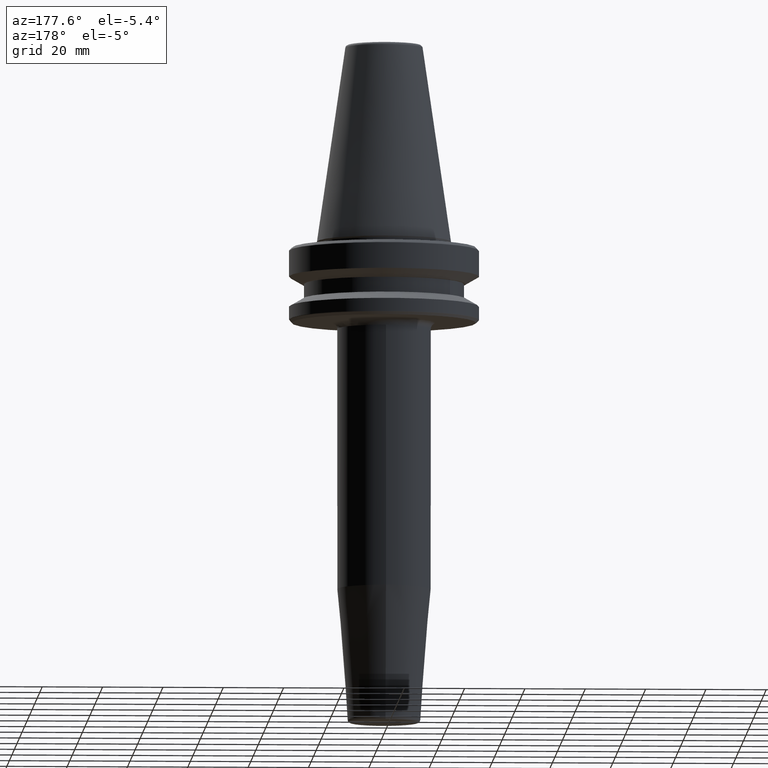
[diagram: clean part render]
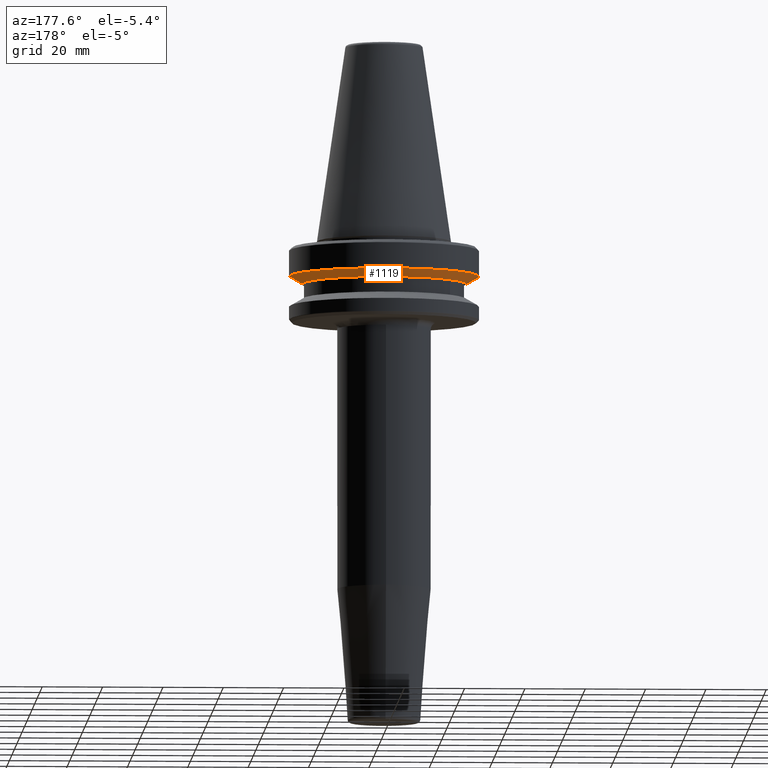
[diagram: same view with one face highlighted and labeled with its STEP entity id]
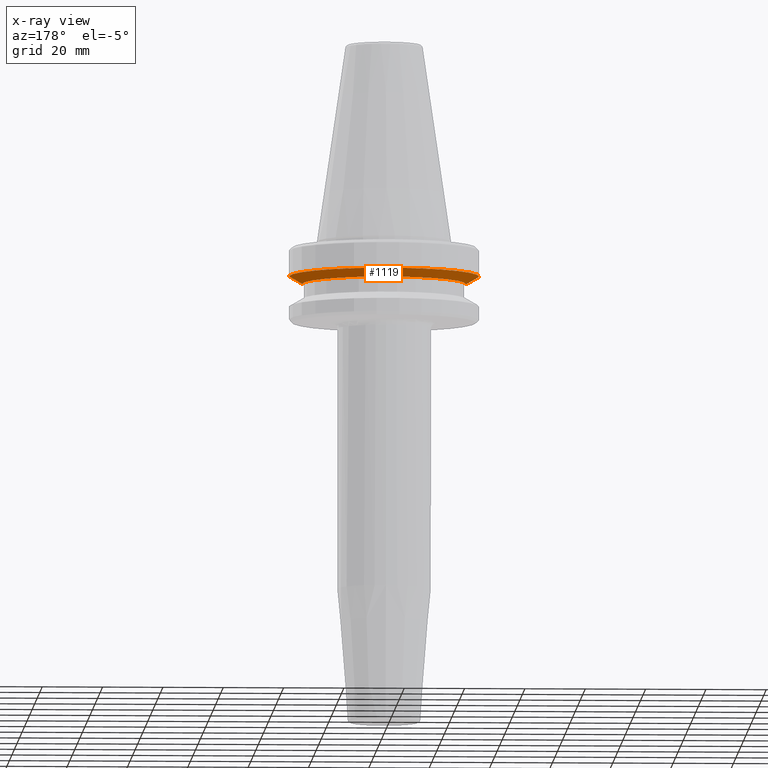
[diagram: x-ray of the same camera — body ghosted, the highlighted face saturated]
A machine part, auxiliary view. The second image highlights one B-rep face of the part: STEP entity #1119.
The next image is the same camera in x-ray: the body ghosted, the highlighted face saturated — about 0% of this face is hidden behind the body in this view.
In plain terms, the highlighted conical surface has half-angle 60 deg.
Its self-contained STEP definition (entity closure, byte-faithful):
#15 = DIRECTION ( 'NONE',  ( -0.0000000000000000000, -0.0000000000000000000, 1.000000000000000000 ) ) ;
#16 = DIRECTION ( 'NONE',  ( 1.000000000000000000, 0.0000000000000000000, 0.0000000000000000000 ) ) ;
#36 = EDGE_CURVE ( 'NONE', #1040, #1211, #375, .T. ) ;
#123 = DIRECTION ( 'NONE',  ( 1.000000000000000000, 0.0000000000000000000, 0.0000000000000000000 ) ) ;
#193 = CARTESIAN_POINT ( 'NONE',  ( 0.0000000000000000000, 0.0000000000000000000, -11.59985799368323700 ) ) ;
#245 = ORIENTED_EDGE ( 'NONE', *, *, #833, .T. ) ;
#252 = AXIS2_PLACEMENT_3D ( 'NONE', #1196, #602, #16 ) ;
#266 = VECTOR ( 'NONE', #267, 1000.000000000000100 ) ;
#267 = DIRECTION ( 'NONE',  ( 0.8660254037844393700, 0.0000000000000000000, 0.4999999999999985000 ) ) ;
#289 = DIRECTION ( 'NONE',  ( -0.0000000000000000000, -0.0000000000000000000, 1.000000000000000000 ) ) ;
#343 = CARTESIAN_POINT ( 'NONE',  ( -31.50000000000000000, 3.857637417314162700E-015, -11.59985799368323700 ) ) ;
#375 = CIRCLE ( 'NONE', #1141, 31.50000000000000000 ) ;
#392 = FACE_OUTER_BOUND ( 'NONE', #556, .T. ) ;
#445 = LINE ( 'NONE', #343, #1241 ) ;
#456 = CARTESIAN_POINT ( 'NONE',  ( 27.16962701892216000, 0.0000000000000000000, -14.10000000000000100 ) ) ;
#470 = CARTESIAN_POINT ( 'NONE',  ( 31.50000000000000000, 0.0000000000000000000, -11.59985799368323700 ) ) ;
#501 = CARTESIAN_POINT ( 'NONE',  ( -31.50000000000000000, 3.857637417314162700E-015, -11.59985799368323700 ) ) ;
#535 = AXIS2_PLACEMENT_3D ( 'NONE', #193, #289, #784 ) ;
#549 = CIRCLE ( 'NONE', #252, 27.16962701892216000 ) ;
#554 = LINE ( 'NONE', #1254, #266 ) ;
#556 = EDGE_LOOP ( 'NONE', ( #915, #245, #810, #1245 ) ) ;
#597 = VERTEX_POINT ( 'NONE', #790 ) ;
#602 = DIRECTION ( 'NONE',  ( -0.0000000000000000000, -0.0000000000000000000, 1.000000000000000000 ) ) ;
#622 = EDGE_CURVE ( 'NONE', #958, #597, #549, .T. ) ;
#737 = CARTESIAN_POINT ( 'NONE',  ( 0.0000000000000000000, 0.0000000000000000000, -11.59985799368323700 ) ) ;
#755 = CONICAL_SURFACE ( 'NONE', #535, 31.50000000000000000, 1.047197551196599400 ) ;
#784 = DIRECTION ( 'NONE',  ( 1.000000000000000000, 0.0000000000000000000, 0.0000000000000000000 ) ) ;
#790 = CARTESIAN_POINT ( 'NONE',  ( -27.16962701892216000, 3.592478546794604700E-015, -14.10000000000000100 ) ) ;
#810 = ORIENTED_EDGE ( 'NONE', *, *, #36, .F. ) ;
#833 = EDGE_CURVE ( 'NONE', #597, #1211, #445, .T. ) ;
#915 = ORIENTED_EDGE ( 'NONE', *, *, #622, .T. ) ;
#958 = VERTEX_POINT ( 'NONE', #456 ) ;
#969 = EDGE_CURVE ( 'NONE', #958, #1040, #554, .T. ) ;
#1039 = DIRECTION ( 'NONE',  ( -0.8660254037844393700, 1.060575238724907800E-016, 0.4999999999999985000 ) ) ;
#1040 = VERTEX_POINT ( 'NONE', #470 ) ;
#1119 = ADVANCED_FACE ( 'NONE', ( #392 ), #755, .T. ) ;
#1141 = AXIS2_PLACEMENT_3D ( 'NONE', #737, #15, #123 ) ;
#1196 = CARTESIAN_POINT ( 'NONE',  ( 0.0000000000000000000, 0.0000000000000000000, -14.10000000000000100 ) ) ;
#1211 = VERTEX_POINT ( 'NONE', #501 ) ;
#1241 = VECTOR ( 'NONE', #1039, 1000.000000000000100 ) ;
#1245 = ORIENTED_EDGE ( 'NONE', *, *, #969, .F. ) ;
#1254 = CARTESIAN_POINT ( 'NONE',  ( 31.50000000000000000, 0.0000000000000000000, -11.59985799368323700 ) ) ;